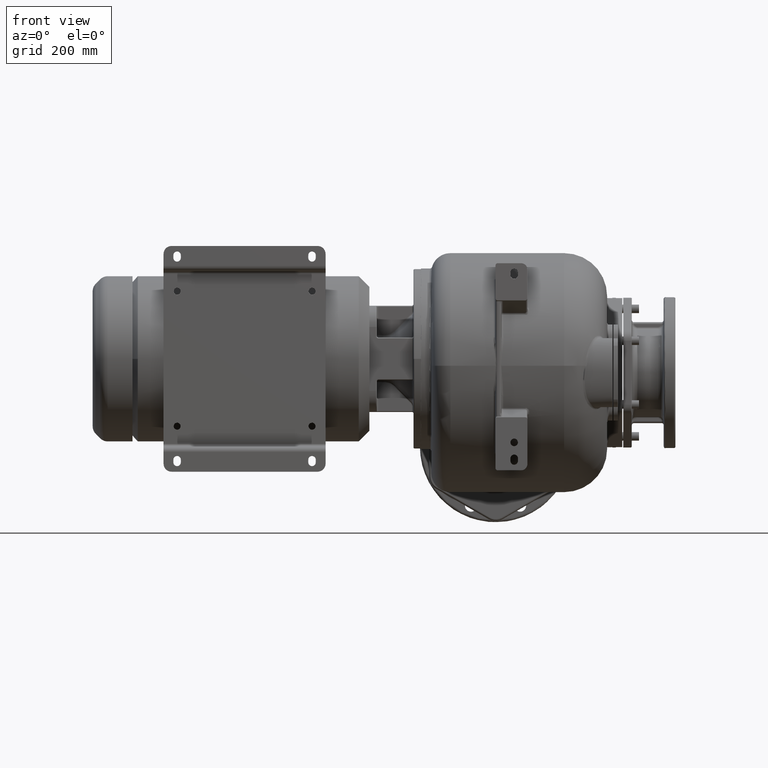
[diagram: clean part render]
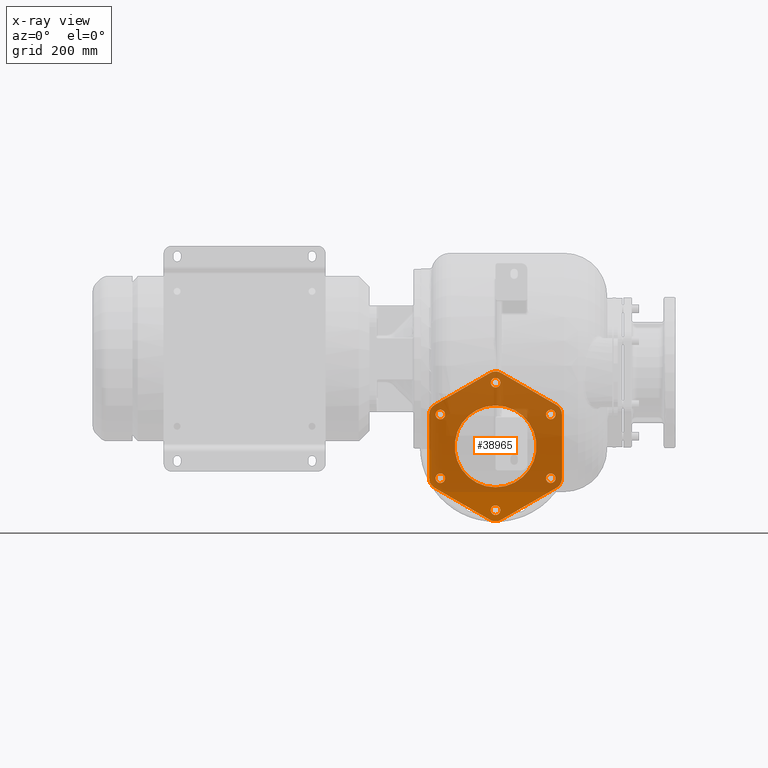
[diagram: x-ray — body ghosted, one internal face saturated and labeled with its STEP entity id]
A machine part, front view, then the same camera in x-ray: the body is ghosted and one INTERNAL B-rep face — a face not visible from any outside direction — is saturated and labeled: STEP entity #38965.
In plain terms, the highlighted planar face has unit normal (0, 1, 0).
Its self-contained STEP definition (entity closure, byte-faithful):
#35681=CARTESIAN_POINT('',(-3.5E1,5.52E2,-4.491114400856E1));
#35682=DIRECTION('',(0.E0,-1.E0,0.E0));
#35683=DIRECTION('',(5.E-1,0.E0,8.660254037844E-1));
#35684=AXIS2_PLACEMENT_3D('',#35681,#35682,#35683);
#35690=DIRECTION('',(8.660254037844E-1,0.E0,5.E-1));
#35691=VECTOR('',#35690,1.200888559914E2);
#35692=CARTESIAN_POINT('',(-1.495E2,5.52E2,-8.676903852481E1));
#35693=LINE('',#35692,#35691);
#35702=CARTESIAN_POINT('',(-3.5E1,5.52E2,-1.65E2));
#35703=DIRECTION('',(0.E0,-1.E0,0.E0));
#35704=DIRECTION('',(0.E0,0.E0,-1.E0));
#35705=AXIS2_PLACEMENT_3D('',#35702,#35703,#35704);
#35707=CARTESIAN_POINT('',(-3.5E1,5.52E2,-1.65E2));
#35708=DIRECTION('',(0.E0,-1.E0,0.E0));
#35709=DIRECTION('',(0.E0,0.E0,1.E0));
#35710=AXIS2_PLACEMENT_3D('',#35707,#35708,#35709);
#35712=CARTESIAN_POINT('',(-1.389230484541E2,5.52E2,-1.05E2));
#35713=DIRECTION('',(0.E0,1.E0,0.E0));
#35714=DIRECTION('',(0.E0,0.E0,-1.E0));
#35715=AXIS2_PLACEMENT_3D('',#35712,#35713,#35714);
#35717=CARTESIAN_POINT('',(-1.389230484541E2,5.52E2,-1.05E2));
#35718=DIRECTION('',(0.E0,1.E0,0.E0));
#35719=DIRECTION('',(0.E0,0.E0,1.E0));
#35720=AXIS2_PLACEMENT_3D('',#35717,#35718,#35719);
#35722=CARTESIAN_POINT('',(-3.5E1,5.52E2,-4.5E1));
#35723=DIRECTION('',(0.E0,1.E0,0.E0));
#35724=DIRECTION('',(-8.660254037844E-1,0.E0,-5.E-1));
#35725=AXIS2_PLACEMENT_3D('',#35722,#35723,#35724);
#35727=CARTESIAN_POINT('',(-3.5E1,5.52E2,-4.5E1));
#35728=DIRECTION('',(0.E0,1.E0,0.E0));
#35729=DIRECTION('',(8.660254037844E-1,0.E0,5.E-1));
#35730=AXIS2_PLACEMENT_3D('',#35727,#35728,#35729);
#35732=CARTESIAN_POINT('',(6.892304845413E1,5.52E2,-1.05E2));
#35733=DIRECTION('',(0.E0,1.E0,0.E0));
#35734=DIRECTION('',(-8.660254037844E-1,0.E0,5.E-1));
#35735=AXIS2_PLACEMENT_3D('',#35732,#35733,#35734);
#35737=CARTESIAN_POINT('',(6.892304845413E1,5.52E2,-1.05E2));
#35738=DIRECTION('',(0.E0,1.E0,0.E0));
#35739=DIRECTION('',(8.660254037844E-1,0.E0,-5.E-1));
#35740=AXIS2_PLACEMENT_3D('',#35737,#35738,#35739);
#35742=CARTESIAN_POINT('',(6.892304845413E1,5.52E2,-2.25E2));
#35743=DIRECTION('',(0.E0,1.E0,0.E0));
#35744=DIRECTION('',(0.E0,0.E0,1.E0));
#35745=AXIS2_PLACEMENT_3D('',#35742,#35743,#35744);
#35747=CARTESIAN_POINT('',(6.892304845413E1,5.52E2,-2.25E2));
#35748=DIRECTION('',(0.E0,1.E0,0.E0));
#35749=DIRECTION('',(0.E0,0.E0,-1.E0));
#35750=AXIS2_PLACEMENT_3D('',#35747,#35748,#35749);
#35752=CARTESIAN_POINT('',(-3.5E1,5.52E2,-2.85E2));
#35753=DIRECTION('',(0.E0,1.E0,0.E0));
#35754=DIRECTION('',(8.660254037844E-1,0.E0,5.E-1));
#35755=AXIS2_PLACEMENT_3D('',#35752,#35753,#35754);
#35757=CARTESIAN_POINT('',(-3.5E1,5.52E2,-2.85E2));
#35758=DIRECTION('',(0.E0,1.E0,0.E0));
#35759=DIRECTION('',(-8.660254037844E-1,0.E0,-5.E-1));
#35760=AXIS2_PLACEMENT_3D('',#35757,#35758,#35759);
#35762=CARTESIAN_POINT('',(-1.389230484541E2,5.52E2,-2.25E2));
#35763=DIRECTION('',(0.E0,1.E0,0.E0));
#35764=DIRECTION('',(8.660254037844E-1,0.E0,-5.E-1));
#35765=AXIS2_PLACEMENT_3D('',#35762,#35763,#35764);
#35767=CARTESIAN_POINT('',(-1.389230484541E2,5.52E2,-2.25E2));
#35768=DIRECTION('',(0.E0,1.E0,0.E0));
#35769=DIRECTION('',(-8.660254037844E-1,0.E0,5.E-1));
#35770=AXIS2_PLACEMENT_3D('',#35767,#35768,#35769);
#35784=DIRECTION('',(-8.660254037844E-1,0.E0,5.E-1));
#35785=VECTOR('',#35784,1.200888559914E2);
#35786=CARTESIAN_POINT('',(-4.55E1,5.52E2,-3.032753894709E2));
#35787=LINE('',#35786,#35785);
#35793=CARTESIAN_POINT('',(-3.5E1,5.52E2,-2.850888559914E2));
#35794=DIRECTION('',(0.E0,-1.E0,0.E0));
#35795=DIRECTION('',(-5.E-1,0.E0,-8.660254037845E-1));
#35796=AXIS2_PLACEMENT_3D('',#35793,#35794,#35795);
#35810=DIRECTION('',(-8.660254037844E-1,0.E0,-5.E-1));
#35811=VECTOR('',#35810,1.200888559914E2);
#35812=CARTESIAN_POINT('',(7.95E1,5.52E2,-2.432309614752E2));
#35813=LINE('',#35812,#35811);
#35819=CARTESIAN_POINT('',(6.9E1,5.52E2,-2.250444279957E2));
#35820=DIRECTION('',(0.E0,-1.E0,0.E0));
#35821=DIRECTION('',(5.E-1,0.E0,-8.660254037844E-1));
#35822=AXIS2_PLACEMENT_3D('',#35819,#35820,#35821);
#35836=DIRECTION('',(0.E0,0.E0,-1.E0));
#35837=VECTOR('',#35836,1.200888559914E2);
#35838=CARTESIAN_POINT('',(9.E1,5.52E2,-1.049555720043E2));
#35839=LINE('',#35838,#35837);
#35845=CARTESIAN_POINT('',(6.9E1,5.52E2,-1.049555720043E2));
#35846=DIRECTION('',(0.E0,-1.E0,0.E0));
#35847=DIRECTION('',(1.E0,0.E0,0.E0));
#35848=AXIS2_PLACEMENT_3D('',#35845,#35846,#35847);
#35854=DIRECTION('',(8.660254037844E-1,0.E0,-5.E-1));
#35855=VECTOR('',#35854,1.200888559914E2);
#35856=CARTESIAN_POINT('',(-2.45E1,5.52E2,-2.672461052908E1));
#35857=LINE('',#35856,#35855);
#35921=CARTESIAN_POINT('',(-1.39E2,5.52E2,-1.049555720043E2));
#35922=DIRECTION('',(0.E0,-1.E0,0.E0));
#35923=DIRECTION('',(-5.E-1,0.E0,8.660254037844E-1));
#35924=AXIS2_PLACEMENT_3D('',#35921,#35922,#35923);
#35930=DIRECTION('',(0.E0,0.E0,1.E0));
#35931=VECTOR('',#35930,1.200888559914E2);
#35932=CARTESIAN_POINT('',(-1.6E2,5.52E2,-2.250444279957E2));
#35933=LINE('',#35932,#35931);
#35947=CARTESIAN_POINT('',(-1.39E2,5.52E2,-2.250444279957E2));
#35948=DIRECTION('',(0.E0,-1.E0,0.E0));
#35949=DIRECTION('',(-1.E0,0.E0,0.E0));
#35950=AXIS2_PLACEMENT_3D('',#35947,#35948,#35949);
#38572=CARTESIAN_POINT('',(7.95E1,5.52E2,-8.676903852481E1));
#38573=VERTEX_POINT('',#38572);
#38574=CARTESIAN_POINT('',(9.E1,5.52E2,-1.049555720043E2));
#38575=VERTEX_POINT('',#38574);
#38576=CARTESIAN_POINT('',(-4.55E1,5.52E2,-2.672461052908E1));
#38577=VERTEX_POINT('',#38576);
#38578=CARTESIAN_POINT('',(-2.45E1,5.52E2,-2.672461052908E1));
#38579=VERTEX_POINT('',#38578);
#38580=CARTESIAN_POINT('',(-1.6E2,5.52E2,-1.049555720043E2));
#38581=VERTEX_POINT('',#38580);
#38582=CARTESIAN_POINT('',(-1.495E2,5.52E2,-8.676903852481E1));
#38583=VERTEX_POINT('',#38582);
#38584=CARTESIAN_POINT('',(9.E1,5.52E2,-2.250444279957E2));
#38585=VERTEX_POINT('',#38584);
#38586=CARTESIAN_POINT('',(7.95E1,5.52E2,-2.432309614752E2));
#38587=VERTEX_POINT('',#38586);
#38588=CARTESIAN_POINT('',(-2.45E1,5.52E2,-3.032753894709E2));
#38589=VERTEX_POINT('',#38588);
#38590=CARTESIAN_POINT('',(-4.55E1,5.52E2,-3.032753894709E2));
#38591=VERTEX_POINT('',#38590);
#38592=CARTESIAN_POINT('',(-1.495E2,5.52E2,-2.432309614752E2));
#38593=VERTEX_POINT('',#38592);
#38594=CARTESIAN_POINT('',(-1.6E2,5.52E2,-2.250444279957E2));
#38595=VERTEX_POINT('',#38594);
#38608=CARTESIAN_POINT('',(-3.5E1,5.52E2,-2.42E2));
#38609=CARTESIAN_POINT('',(-3.5E1,5.52E2,-8.8E1));
#38610=VERTEX_POINT('',#38608);
#38611=VERTEX_POINT('',#38609);
#38618=CARTESIAN_POINT('',(-1.389230484541E2,5.52E2,-1.14E2));
#38619=CARTESIAN_POINT('',(-1.389230484541E2,5.52E2,-9.6E1));
#38620=VERTEX_POINT('',#38618);
#38621=VERTEX_POINT('',#38619);
#38626=CARTESIAN_POINT('',(-4.279422863406E1,5.52E2,-4.95E1));
#38627=CARTESIAN_POINT('',(-2.720577136594E1,5.52E2,-4.05E1));
#38628=VERTEX_POINT('',#38626);
#38629=VERTEX_POINT('',#38627);
#38634=CARTESIAN_POINT('',(6.112881982007E1,5.52E2,-1.005E2));
#38635=CARTESIAN_POINT('',(7.671727708819E1,5.52E2,-1.095E2));
#38636=VERTEX_POINT('',#38634);
#38637=VERTEX_POINT('',#38635);
#38642=CARTESIAN_POINT('',(6.892304845413E1,5.52E2,-2.16E2));
#38643=CARTESIAN_POINT('',(6.892304845413E1,5.52E2,-2.34E2));
#38644=VERTEX_POINT('',#38642);
#38645=VERTEX_POINT('',#38643);
#38650=CARTESIAN_POINT('',(-2.720577136594E1,5.52E2,-2.805E2));
#38651=CARTESIAN_POINT('',(-4.279422863406E1,5.52E2,-2.895E2));
#38652=VERTEX_POINT('',#38650);
#38653=VERTEX_POINT('',#38651);
#38658=CARTESIAN_POINT('',(-1.311288198201E2,5.52E2,-2.295E2));
#38659=CARTESIAN_POINT('',(-1.467172770882E2,5.52E2,-2.205E2));
#38660=VERTEX_POINT('',#38658);
#38661=VERTEX_POINT('',#38659);
#38894=CARTESIAN_POINT('',(-3.5E1,5.52E2,-1.65E2));
#38895=DIRECTION('',(0.E0,1.E0,0.E0));
#38896=DIRECTION('',(1.E0,0.E0,0.E0));
#38897=AXIS2_PLACEMENT_3D('',#38894,#38895,#38896);
#38898=PLANE('',#38897);
#38900=ORIENTED_EDGE('',*,*,#38899,.T.);
#38902=ORIENTED_EDGE('',*,*,#38901,.F.);
#38904=ORIENTED_EDGE('',*,*,#38903,.T.);
#38906=ORIENTED_EDGE('',*,*,#38905,.F.);
#38907=ORIENTED_EDGE('',*,*,#38885,.T.);
#38908=ORIENTED_EDGE('',*,*,#38874,.F.);
#38910=ORIENTED_EDGE('',*,*,#38909,.T.);
#38912=ORIENTED_EDGE('',*,*,#38911,.F.);
#38914=ORIENTED_EDGE('',*,*,#38913,.T.);
#38916=ORIENTED_EDGE('',*,*,#38915,.F.);
#38918=ORIENTED_EDGE('',*,*,#38917,.T.);
#38920=ORIENTED_EDGE('',*,*,#38919,.F.);
#38921=EDGE_LOOP('',(#38900,#38902,#38904,#38906,#38907,#38908,#38910,#38912,
#38914,#38916,#38918,#38920));
#38922=FACE_OUTER_BOUND('',#38921,.F.);
#38924=ORIENTED_EDGE('',*,*,#38923,.T.);
#38926=ORIENTED_EDGE('',*,*,#38925,.T.);
#38927=EDGE_LOOP('',(#38924,#38926));
#38928=FACE_BOUND('',#38927,.F.);
#38930=ORIENTED_EDGE('',*,*,#38929,.F.);
#38932=ORIENTED_EDGE('',*,*,#38931,.F.);
#38933=EDGE_LOOP('',(#38930,#38932));
#38934=FACE_BOUND('',#38933,.F.);
#38936=ORIENTED_EDGE('',*,*,#38935,.F.);
#38938=ORIENTED_EDGE('',*,*,#38937,.F.);
#38939=EDGE_LOOP('',(#38936,#38938));
#38940=FACE_BOUND('',#38939,.F.);
#38942=ORIENTED_EDGE('',*,*,#38941,.F.);
#38944=ORIENTED_EDGE('',*,*,#38943,.F.);
#38945=EDGE_LOOP('',(#38942,#38944));
#38946=FACE_BOUND('',#38945,.F.);
#38948=ORIENTED_EDGE('',*,*,#38947,.F.);
#38950=ORIENTED_EDGE('',*,*,#38949,.F.);
#38951=EDGE_LOOP('',(#38948,#38950));
#38952=FACE_BOUND('',#38951,.F.);
#38954=ORIENTED_EDGE('',*,*,#38953,.F.);
#38956=ORIENTED_EDGE('',*,*,#38955,.F.);
#38957=EDGE_LOOP('',(#38954,#38956));
#38958=FACE_BOUND('',#38957,.F.);
#38960=ORIENTED_EDGE('',*,*,#38959,.F.);
#38962=ORIENTED_EDGE('',*,*,#38961,.F.);
#38963=EDGE_LOOP('',(#38960,#38962));
#38964=FACE_BOUND('',#38963,.F.);
#38965=ADVANCED_FACE('',(#38922,#38928,#38934,#38940,#38946,#38952,#38958,
#38964),#38898,.F.);
#35685=CIRCLE('',#35684,2.1E1);
#35706=CIRCLE('',#35705,7.7E1);
#35711=CIRCLE('',#35710,7.7E1);
#35716=CIRCLE('',#35715,9.E0);
#35721=CIRCLE('',#35720,9.E0);
#35726=CIRCLE('',#35725,9.E0);
#35731=CIRCLE('',#35730,9.E0);
#35736=CIRCLE('',#35735,9.E0);
#35741=CIRCLE('',#35740,9.E0);
#35746=CIRCLE('',#35745,9.E0);
#35751=CIRCLE('',#35750,9.E0);
#35756=CIRCLE('',#35755,9.E0);
#35761=CIRCLE('',#35760,9.E0);
#35766=CIRCLE('',#35765,9.E0);
#35771=CIRCLE('',#35770,9.E0);
#35797=CIRCLE('',#35796,2.1E1);
#35823=CIRCLE('',#35822,2.1E1);
#35849=CIRCLE('',#35848,2.1E1);
#35925=CIRCLE('',#35924,2.1E1);
#35951=CIRCLE('',#35950,2.1E1);
#38874=EDGE_CURVE('',#38579,#38577,#35685,.T.);
#38885=EDGE_CURVE('',#38583,#38577,#35693,.T.);
#38899=EDGE_CURVE('',#38591,#38593,#35787,.T.);
#38901=EDGE_CURVE('',#38595,#38593,#35951,.T.);
#38903=EDGE_CURVE('',#38595,#38581,#35933,.T.);
#38905=EDGE_CURVE('',#38583,#38581,#35925,.T.);
#38909=EDGE_CURVE('',#38579,#38573,#35857,.T.);
#38911=EDGE_CURVE('',#38575,#38573,#35849,.T.);
#38913=EDGE_CURVE('',#38575,#38585,#35839,.T.);
#38915=EDGE_CURVE('',#38587,#38585,#35823,.T.);
#38917=EDGE_CURVE('',#38587,#38589,#35813,.T.);
#38919=EDGE_CURVE('',#38591,#38589,#35797,.T.);
#38923=EDGE_CURVE('',#38610,#38611,#35706,.T.);
#38925=EDGE_CURVE('',#38611,#38610,#35711,.T.);
#38929=EDGE_CURVE('',#38620,#38621,#35716,.T.);
#38931=EDGE_CURVE('',#38621,#38620,#35721,.T.);
#38935=EDGE_CURVE('',#38628,#38629,#35726,.T.);
#38937=EDGE_CURVE('',#38629,#38628,#35731,.T.);
#38941=EDGE_CURVE('',#38636,#38637,#35736,.T.);
#38943=EDGE_CURVE('',#38637,#38636,#35741,.T.);
#38947=EDGE_CURVE('',#38644,#38645,#35746,.T.);
#38949=EDGE_CURVE('',#38645,#38644,#35751,.T.);
#38953=EDGE_CURVE('',#38652,#38653,#35756,.T.);
#38955=EDGE_CURVE('',#38653,#38652,#35761,.T.);
#38959=EDGE_CURVE('',#38660,#38661,#35766,.T.);
#38961=EDGE_CURVE('',#38661,#38660,#35771,.T.);